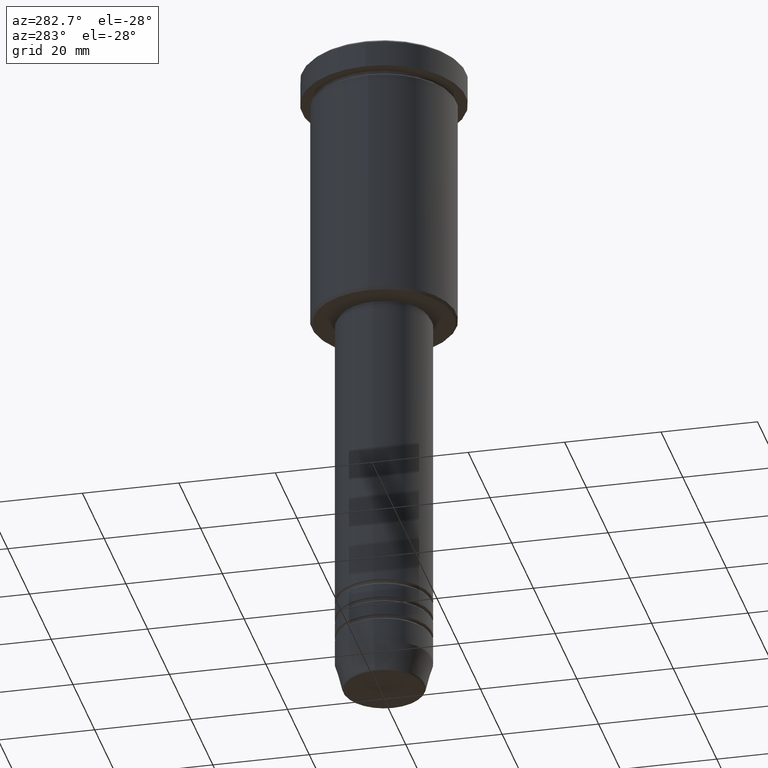
[diagram: clean part render]
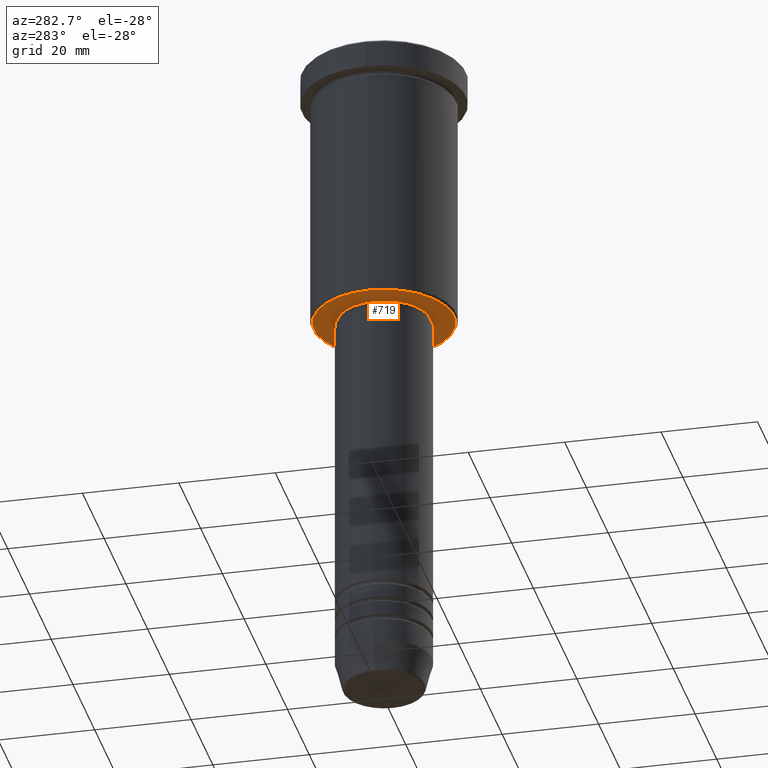
[diagram: same view with one face highlighted and labeled with its STEP entity id]
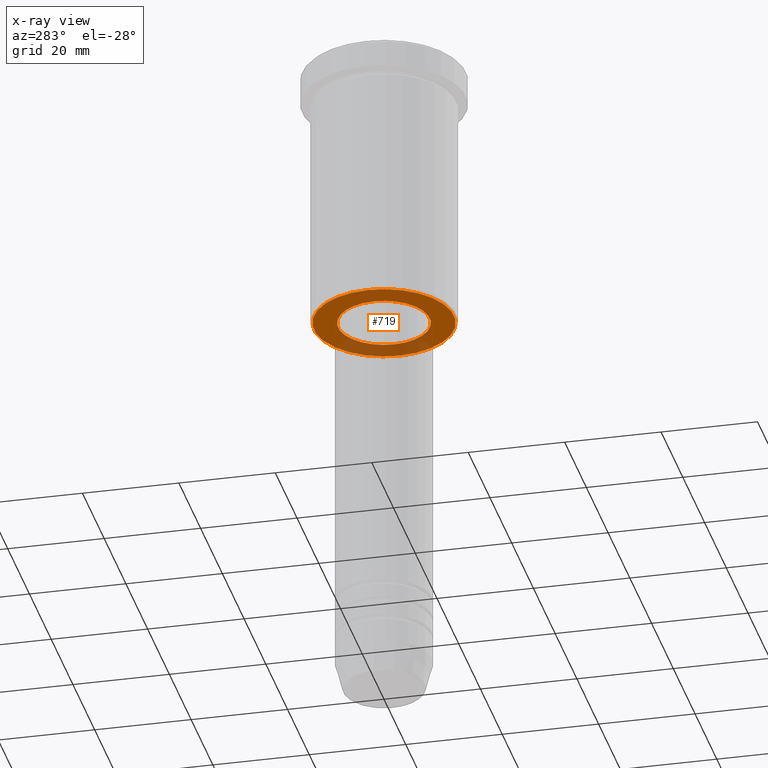
[diagram: x-ray of the same camera — body ghosted, the highlighted face saturated]
A machine part, auxiliary view. The second image highlights one B-rep face of the part: STEP entity #719.
The next image is the same camera in x-ray: the body ghosted, the highlighted face saturated — about 25% of this face is hidden behind the body in this view.
In plain terms, the highlighted planar face has unit normal (0, 0, -1).
Its self-contained STEP definition (entity closure, byte-faithful):
#1 = DIRECTION ( 'NONE',  ( -0.000000000000000000, -0.000000000000000000, 1.000000000000000000 ) ) ;
#21 = DIRECTION ( 'NONE',  ( 0.000000000000000000, 0.000000000000000000, -1.000000000000000000 ) ) ;
#31 = AXIS2_PLACEMENT_3D ( 'NONE', #554, #1, #807 ) ;
#52 = EDGE_LOOP ( 'NONE', ( #954, #878 ) ) ;
#59 = PLANE ( 'NONE',  #796 ) ;
#73 = DIRECTION ( 'NONE',  ( 0.000000000000000000, 0.000000000000000000, -1.000000000000000000 ) ) ;
#110 = DIRECTION ( 'NONE',  ( -1.000000000000000000, 0.000000000000000000, 0.000000000000000000 ) ) ;
#189 = CIRCLE ( 'NONE', #856, 14.50000000000002487 ) ;
#287 = VERTEX_POINT ( 'NONE', #895 ) ;
#292 = ORIENTED_EDGE ( 'NONE', *, *, #1007, .T. ) ;
#315 = DIRECTION ( 'NONE',  ( 1.000000000000000000, 0.000000000000000000, 0.000000000000000000 ) ) ;
#343 = AXIS2_PLACEMENT_3D ( 'NONE', #902, #73, #910 ) ;
#355 = CARTESIAN_POINT ( 'NONE',  ( 0.000000000000000000, 15.00000000000000000, -56.00000000000000711 ) ) ;
#376 = CARTESIAN_POINT ( 'NONE',  ( 0.000000000000000000, 0.000000000000000000, -56.00000000000000711 ) ) ;
#457 = FACE_BOUND ( 'NONE', #613, .T. ) ;
#517 = CARTESIAN_POINT ( 'NONE',  ( 9.500000000000001776, 0.000000000000000000, -56.00000000000000711 ) ) ;
#550 = CARTESIAN_POINT ( 'NONE',  ( 14.50000000000002487, 0.000000000000000000, -56.00000000000000711 ) ) ;
#554 = CARTESIAN_POINT ( 'NONE',  ( 0.000000000000000000, 0.000000000000000000, -56.00000000000000711 ) ) ;
#575 = EDGE_CURVE ( 'NONE', #938, #1119, #725, .T. ) ;
#613 = EDGE_LOOP ( 'NONE', ( #716, #292 ) ) ;
#654 = CIRCLE ( 'NONE', #343, 14.50000000000002487 ) ;
#716 = ORIENTED_EDGE ( 'NONE', *, *, #575, .T. ) ;
#719 = ADVANCED_FACE ( 'NONE', ( #816, #457 ), #59, .T. ) ;
#725 = CIRCLE ( 'NONE', #1063, 9.500000000000001776 ) ;
#757 = VERTEX_POINT ( 'NONE', #550 ) ;
#777 = CARTESIAN_POINT ( 'NONE',  ( 0.000000000000000000, 0.000000000000000000, -56.00000000000000711 ) ) ;
#792 = EDGE_CURVE ( 'NONE', #757, #287, #654, .T. ) ;
#796 = AXIS2_PLACEMENT_3D ( 'NONE', #355, #914, #1178 ) ;
#807 = DIRECTION ( 'NONE',  ( 1.000000000000000000, 0.000000000000000000, 0.000000000000000000 ) ) ;
#816 = FACE_OUTER_BOUND ( 'NONE', #52, .T. ) ;
#827 = CARTESIAN_POINT ( 'NONE',  ( -9.500000000000001776, 1.163414459189985682E-15, -56.00000000000000711 ) ) ;
#856 = AXIS2_PLACEMENT_3D ( 'NONE', #376, #21, #110 ) ;
#878 = ORIENTED_EDGE ( 'NONE', *, *, #1150, .T. ) ;
#895 = CARTESIAN_POINT ( 'NONE',  ( -14.50000000000002487, 1.806354028742347380E-15, -56.00000000000000711 ) ) ;
#896 = CIRCLE ( 'NONE', #31, 9.500000000000001776 ) ;
#902 = CARTESIAN_POINT ( 'NONE',  ( 0.000000000000000000, 0.000000000000000000, -56.00000000000000711 ) ) ;
#910 = DIRECTION ( 'NONE',  ( -1.000000000000000000, 0.000000000000000000, 0.000000000000000000 ) ) ;
#914 = DIRECTION ( 'NONE',  ( 0.000000000000000000, 0.000000000000000000, -1.000000000000000000 ) ) ;
#938 = VERTEX_POINT ( 'NONE', #517 ) ;
#954 = ORIENTED_EDGE ( 'NONE', *, *, #792, .T. ) ;
#964 = DIRECTION ( 'NONE',  ( -0.000000000000000000, -0.000000000000000000, 1.000000000000000000 ) ) ;
#1007 = EDGE_CURVE ( 'NONE', #1119, #938, #896, .T. ) ;
#1063 = AXIS2_PLACEMENT_3D ( 'NONE', #777, #964, #315 ) ;
#1119 = VERTEX_POINT ( 'NONE', #827 ) ;
#1150 = EDGE_CURVE ( 'NONE', #287, #757, #189, .T. ) ;
#1178 = DIRECTION ( 'NONE',  ( -1.000000000000000000, 0.000000000000000000, -0.000000000000000000 ) ) ;